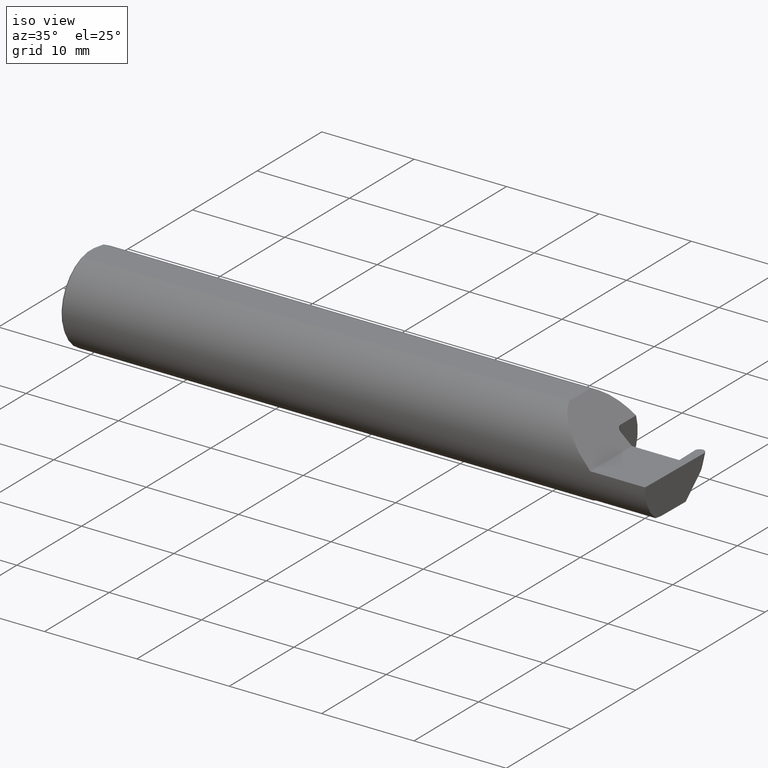
[diagram: clean part render]
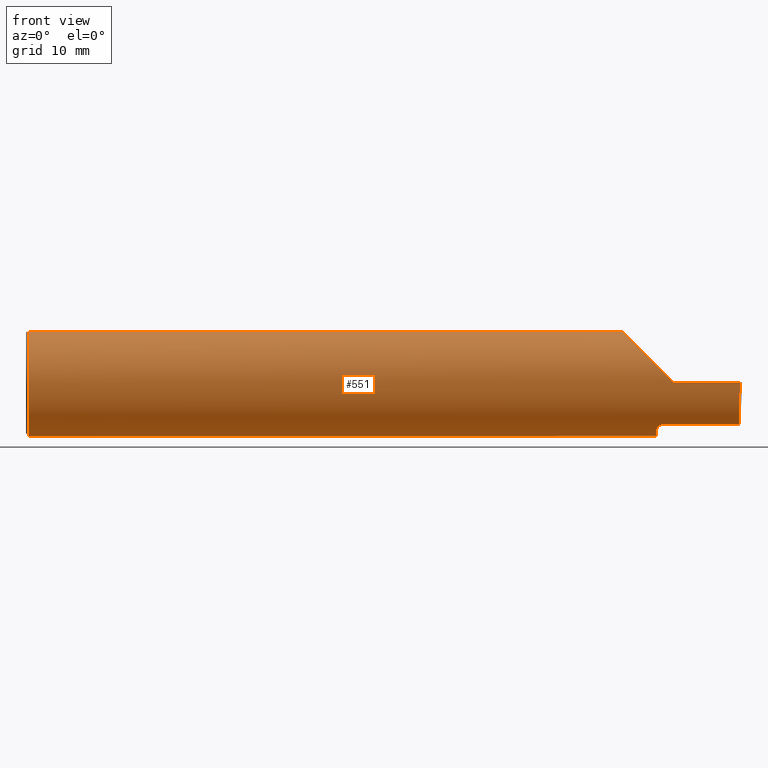
[diagram: tour spotlight — one face highlighted and labeled with its STEP entity id]
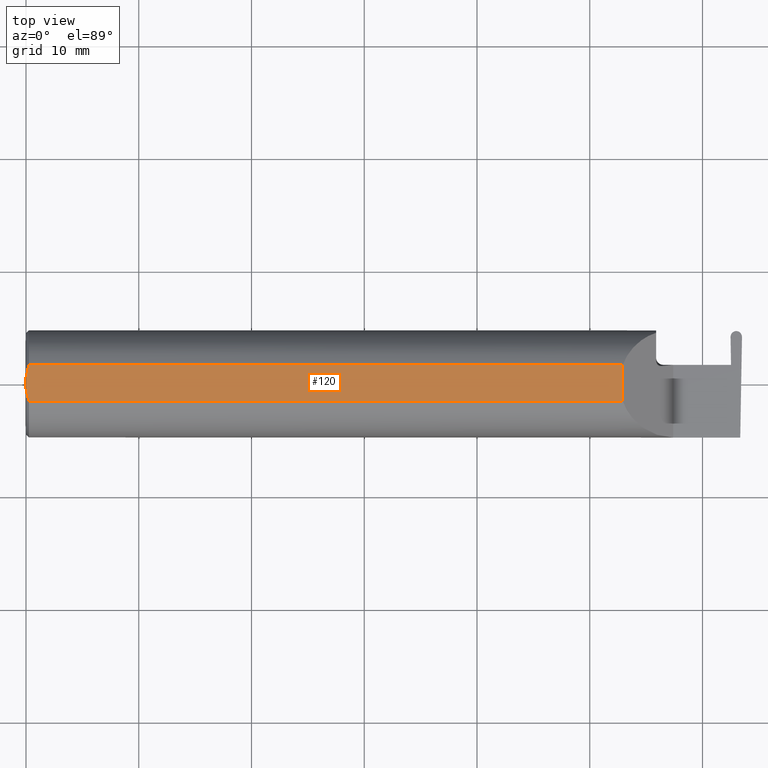
[diagram: tour spotlight — one face highlighted and labeled with its STEP entity id]
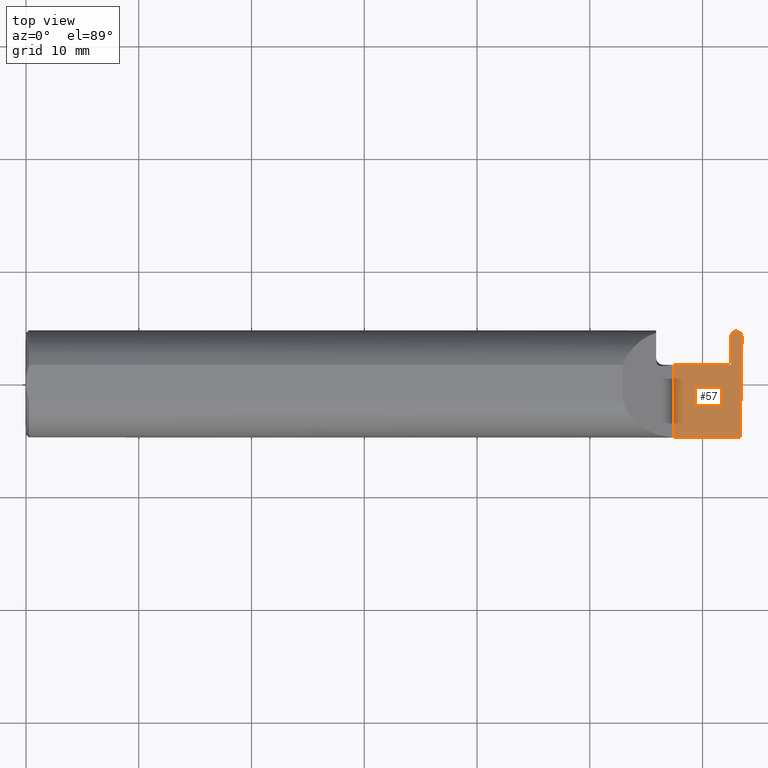
[diagram: tour spotlight — one face highlighted and labeled with its STEP entity id]
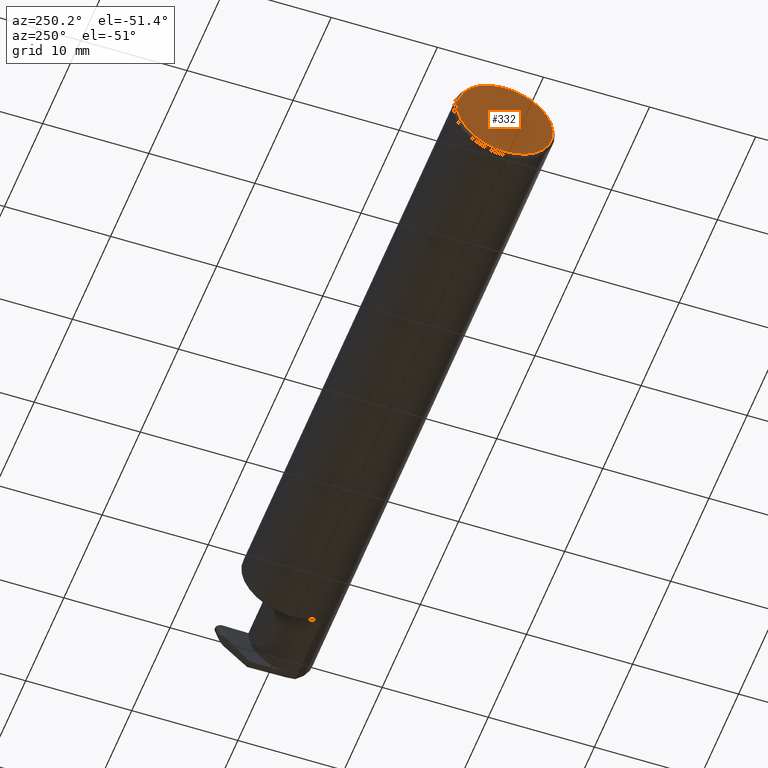
[diagram: tour spotlight — one face highlighted and labeled with its STEP entity id]
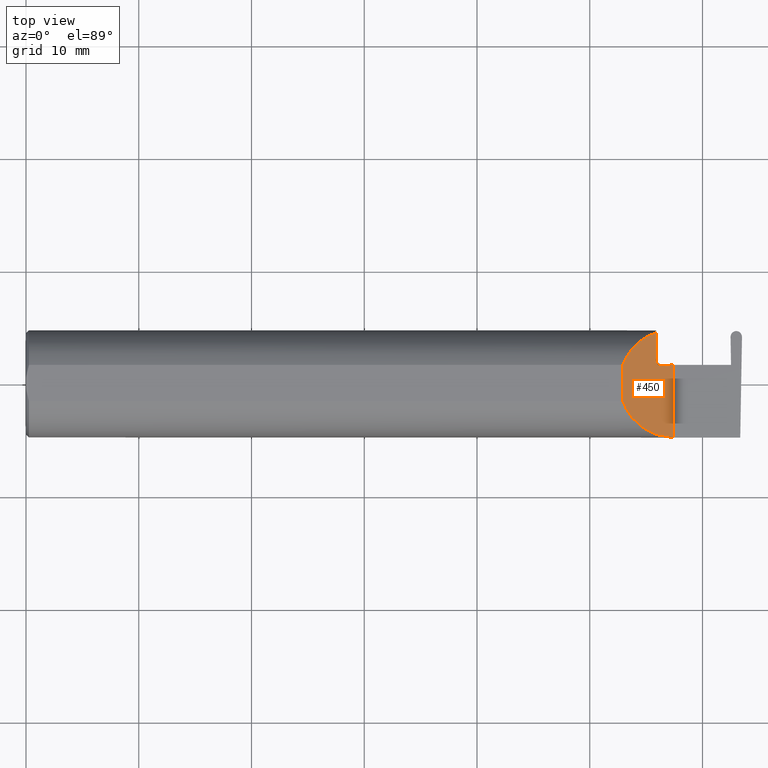
[diagram: tour spotlight — one face highlighted and labeled with its STEP entity id]
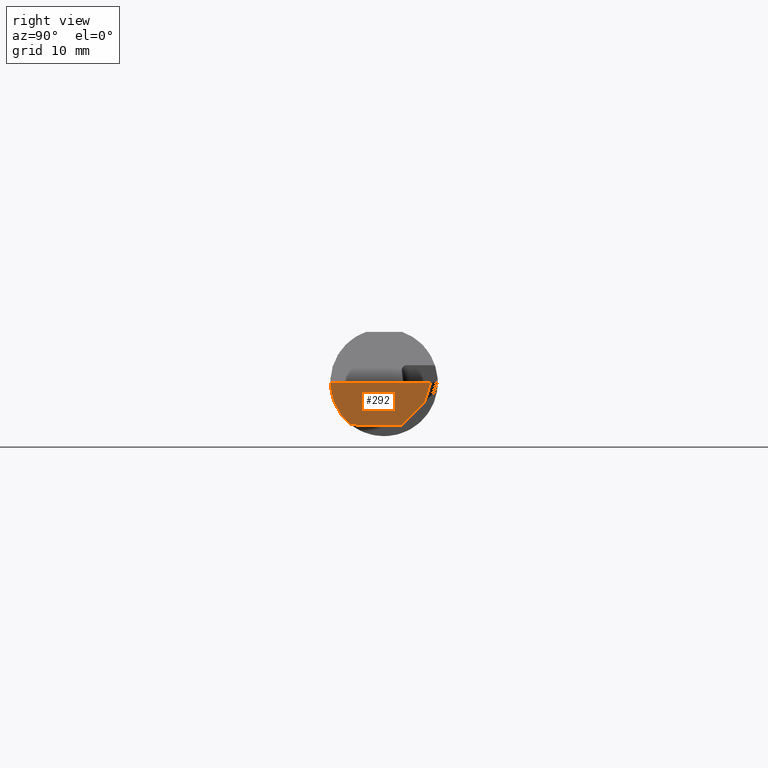
[diagram: tour spotlight — one face highlighted and labeled with its STEP entity id]
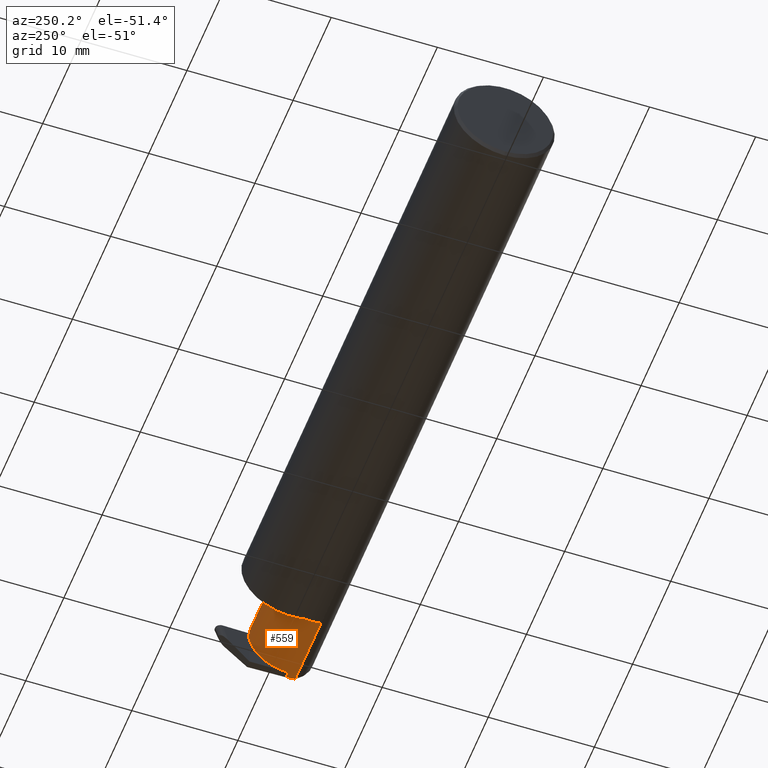
[diagram: tour spotlight — one face highlighted and labeled with its STEP entity id]
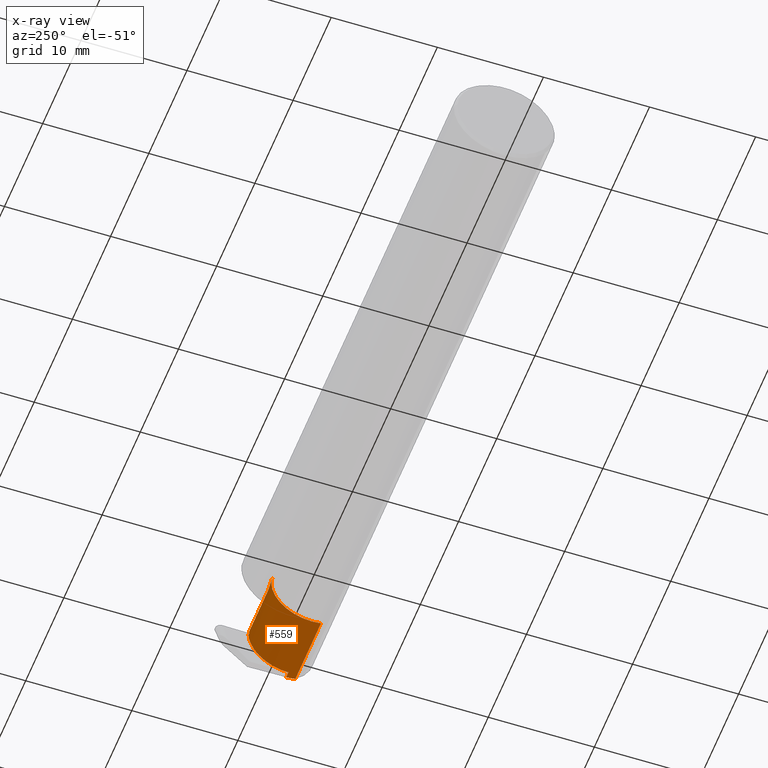
[diagram: x-ray of the same camera — body ghosted, this tour face saturated]
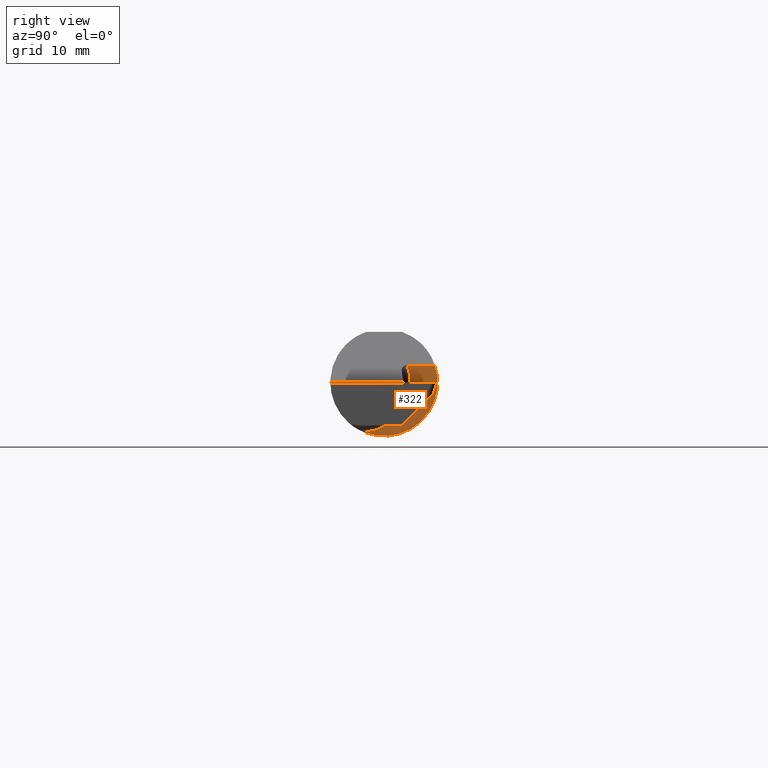
[diagram: tour spotlight — one face highlighted and labeled with its STEP entity id]
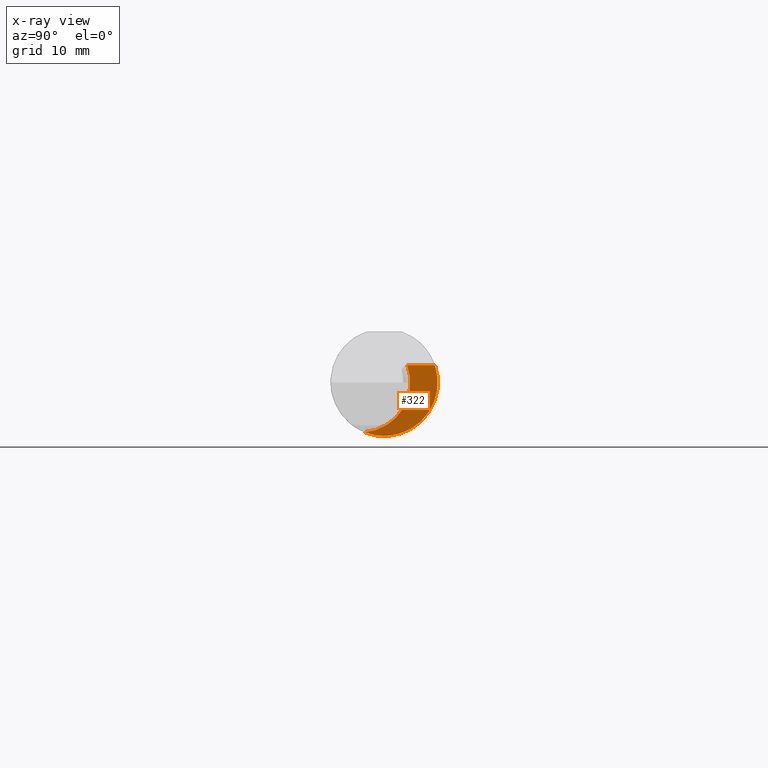
[diagram: x-ray of the same camera — body ghosted, this tour face saturated]
A machine part: a face-by-face anatomy tour. The part has 19 B-rep faces; the first image is the clean iso view, then the 8 largest visible faces are spotlighted one at a time (largest first), each with its STEP entity span.

Face 1 — front view, entity #551. In plain terms, the highlighted cylindrical surface (partial cylindrical patch) has radius 4.7587 mm, axis along (-1, -0, -0).
Definition (entity closure, byte-faithful):
#17 = CARTESIAN_POINT ( 'NONE',  ( 2.213203859946834662, -0.1120371980050636068, -0.1501764597936560697 ) ) ;
#20 = DIRECTION ( 'NONE',  ( -1.000000000000000000, -0.000000000000000000, -0.000000000000000000 ) ) ;
#24 = CARTESIAN_POINT ( 'NONE',  ( 2.201843912362377864, -0.08846956905169063579, -0.1652353808078973474 ) ) ;
#26 = CARTESIAN_POINT ( 'NONE',  ( 0.009999999999999346217, 0.000000000000000000, 0.000000000000000000 ) ) ;
#33 = ORIENTED_EDGE ( 'NONE', *, *, #471, .F. ) ;
#41 = VERTEX_POINT ( 'NONE', #642 ) ;
#42 = ORIENTED_EDGE ( 'NONE', *, *, #225, .F. ) ;
#44 = CARTESIAN_POINT ( 'NONE',  ( 2.489979300894684666, -0.1172600179964003314, -0.1461167706989305870 ) ) ;
#61 = CARTESIAN_POINT ( 'NONE',  ( 0.000000000000000000, 0.000000000000000000, 0.000000000000000000 ) ) ;
#66 = CARTESIAN_POINT ( 'NONE',  ( 2.200000000000000178, 0.1774824568795464186, 0.05999999999999961614 ) ) ;
#67 = ORIENTED_EDGE ( 'NONE', *, *, #643, .T. ) ;
#69 = B_SPLINE_CURVE_WITH_KNOTS ( 'NONE', 3,
 ( #395, #500, #666, #548, #17, #117, #184, #336, #24, #231, #562, #282 ),
 .UNSPECIFIED., .F., .F.,
 ( 4, 2, 2, 2, 2, 4 ),
 ( 1.967976973658592312E-07, 0.0002120314145722267303, 0.0004238660314470875661, 0.0008475352651967975283, 0.001271204498946507328, 0.001694873732696217019 ),
 .UNSPECIFIED. ) ;
#74 = DIRECTION ( 'NONE',  ( 1.000000000000000000, 0.000000000000000000, 0.000000000000000000 ) ) ;
#99 = CARTESIAN_POINT ( 'NONE',  ( 2.111272250967329622, -0.1402645296119147678, 0.1487277490326685825 ) ) ;
#115 = FACE_OUTER_BOUND ( 'NONE', #400, .T. ) ;
#117 = CARTESIAN_POINT ( 'NONE',  ( 2.208439486659307338, -0.1064616213911156184, -0.1542305641651501857 ) ) ;
#125 = CARTESIAN_POINT ( 'NONE',  ( 2.144848040052163896, 0.1588376980957759976, 0.1151519599478345868 ) ) ;
#135 = CARTESIAN_POINT ( 'NONE',  ( 0.009999999999999346217, -0.06325108694718235836, 0.1763499999999999235 ) ) ;
#137 = VERTEX_POINT ( 'NONE', #443 ) ;
#142 = VERTEX_POINT ( 'NONE', #66 ) ;
#144 = EDGE_CURVE ( 'NONE', #633, #159, #612, .T. ) ;
#149 = VECTOR ( 'NONE', #672, 39.37007874015748143 ) ;
#157 = CARTESIAN_POINT ( 'NONE',  ( 2.491840075348994876, -0.1873500000000000165, -0.05781030015605130579 ) ) ;
#159 = VERTEX_POINT ( 'NONE', #176 ) ;
#165 = AXIS2_PLACEMENT_3D ( 'NONE', #469, #318, #248 ) ;
#174 = LINE ( 'NONE', #272, #356 ) ;
#176 = CARTESIAN_POINT ( 'NONE',  ( 2.083649999999998670, -0.06325108694718283020, 0.1763499999999999235 ) ) ;
#183 = CYLINDRICAL_SURFACE ( 'NONE', #258, 0.1873499999999999888 ) ;
#184 = CARTESIAN_POINT ( 'NONE',  ( 2.206304331342288094, -0.1022198306720688704, -0.1570962426853819982 ) ) ;
#185 = VERTEX_POINT ( 'NONE', #381 ) ;
#187 = CARTESIAN_POINT ( 'NONE',  ( 2.103305020982357387, 0.1180511404724818164, 0.1566949790176410395 ) ) ;
#191 = CARTESIAN_POINT ( 'NONE',  ( 2.200000000000000178, 0.1774824568795464186, 0.05999999999999961614 ) ) ;
#196 = CARTESIAN_POINT ( 'NONE',  ( 2.342483000000000093, -0.1172600179964003314, -0.1461167706989305870 ) ) ;
#208 = EDGE_CURVE ( 'NONE', #386, #142, #508, .T. ) ;
#214 =( BOUNDED_CURVE ( )  B_SPLINE_CURVE ( 3, ( #513, #703, #99, #417 ),
 .UNSPECIFIED., .F., .T. ) 
 B_SPLINE_CURVE_WITH_KNOTS ( ( 4, 4 ),
 ( 4.712388980384688786, 5.938809479923471635 ),
 .UNSPECIFIED. ) 
 CURVE ( )  GEOMETRIC_REPRESENTATION_ITEM ( )  RATIONAL_B_SPLINE_CURVE ( ( 1.000000000000000000, 0.8785364999009659392, 0.8785364999009659392, 1.000000000000000000 ) ) 
 REPRESENTATION_ITEM ( '' )  );
#224 = CIRCLE ( 'NONE', #618, 0.1873499999999999888 ) ;
#225 = EDGE_CURVE ( 'NONE', #137, #185, #69, .T. ) ;
#229 = CARTESIAN_POINT ( 'NONE',  ( 2.493859163031828086, -0.1873499999999999888, 0.000000000000000000 ) ) ;
#231 = CARTESIAN_POINT ( 'NONE',  ( 2.200358271039143165, -0.07873626113568055196, -0.1700887912276896341 ) ) ;
#238 = LINE ( 'NONE', #196, #291 ) ;
#243 = CARTESIAN_POINT ( 'NONE',  ( 0.000000000000000000, -0.06325108694718235836, 0.1763499999999999235 ) ) ;
#248 = DIRECTION ( 'NONE',  ( 0.000000000000000000, 0.000000000000000000, -1.000000000000000000 ) ) ;
#249 = ORIENTED_EDGE ( 'NONE', *, *, #144, .F. ) ;
#258 = AXIS2_PLACEMENT_3D ( 'NONE', #61, #597, #427 ) ;
#265 = CARTESIAN_POINT ( 'NONE',  ( 2.490456025610515045, -0.1623470442677539538, -0.1099340280425341043 ) ) ;
#272 = CARTESIAN_POINT ( 'NONE',  ( 0.000000000000000000, 0.06325108694718235836, 0.1763499999999999235 ) ) ;
#276 = ORIENTED_EDGE ( 'NONE', *, *, #593, .T. ) ;
#282 = CARTESIAN_POINT ( 'NONE',  ( 2.200000000000000178, -0.06851976604679038685, -0.1743704796142199753 ) ) ;
#291 = VECTOR ( 'NONE', #515, 39.37007874015748143 ) ;
#312 = VECTOR ( 'NONE', #20, 39.37007874015748143 ) ;
#318 = DIRECTION ( 'NONE',  ( 1.000000000000000000, 0.000000000000000000, 0.000000000000000000 ) ) ;
#331 = ORIENTED_EDGE ( 'NONE', *, *, #428, .T. ) ;
#336 = CARTESIAN_POINT ( 'NONE',  ( 2.202960551809340028, -0.09317341542745721794, -0.1626248379125198318 ) ) ;
#343 = EDGE_CURVE ( 'NONE', #185, #142, #510, .T. ) ;
#344 = VERTEX_POINT ( 'NONE', #451 ) ;
#349 = CARTESIAN_POINT ( 'NONE',  ( 2.083649999999998670, 0.06325108694718283020, 0.1763499999999999235 ) ) ;
#354 = EDGE_CURVE ( 'NONE', #501, #159, #214, .T. ) ;
#356 = VECTOR ( 'NONE', #487, 39.37007874015748143 ) ;
#357 = CIRCLE ( 'NONE', #498, 0.1873499999999999888 ) ;
#365 = ORIENTED_EDGE ( 'NONE', *, *, #208, .T. ) ;
#377 = CARTESIAN_POINT ( 'NONE',  ( 2.260000000000000231, -0.1873499999999999888, 2.939152317953647352E-17 ) ) ;
#381 = CARTESIAN_POINT ( 'NONE',  ( 2.200000000000000178, -0.06851976604679038685, -0.1743704796142199753 ) ) ;
#386 = VERTEX_POINT ( 'NONE', #641 ) ;
#388 = CARTESIAN_POINT ( 'NONE',  ( 0.009999999999999346217, 0.000000000000000000, 0.000000000000000000 ) ) ;
#395 = CARTESIAN_POINT ( 'NONE',  ( 2.225000000000000089, -0.1172600179964003314, -0.1461167706989306148 ) ) ;
#400 = EDGE_LOOP ( 'NONE', ( #610, #331, #276, #549, #249, #492, #67, #33, #365, #640, #42 ) ) ;
#417 = CARTESIAN_POINT ( 'NONE',  ( 2.083649999999998670, -0.06325108694718283020, 0.1763499999999999235 ) ) ;
#427 = DIRECTION ( 'NONE',  ( 0.000000000000000000, 0.000000000000000000, 1.000000000000000000 ) ) ;
#428 = EDGE_CURVE ( 'NONE', #41, #563, #667, .T. ) ;
#443 = CARTESIAN_POINT ( 'NONE',  ( 2.225000000000000089, -0.1172600179964003314, -0.1461167706989306148 ) ) ;
#451 = CARTESIAN_POINT ( 'NONE',  ( 0.009999999999999346217, 0.000000000000000000, -0.1873499999999999888 ) ) ;
#453 = LINE ( 'NONE', #623, #312 ) ;
#469 = CARTESIAN_POINT ( 'NONE',  ( 2.200000000000000178, 0.000000000000000000, 0.000000000000000000 ) ) ;
#471 = EDGE_CURVE ( 'NONE', #386, #476, #174, .T. ) ;
#476 = VERTEX_POINT ( 'NONE', #540 ) ;
#487 = DIRECTION ( 'NONE',  ( -1.000000000000000000, -0.000000000000000000, -0.000000000000000000 ) ) ;
#492 = ORIENTED_EDGE ( 'NONE', *, *, #582, .T. ) ;
#498 = AXIS2_PLACEMENT_3D ( 'NONE', #388, #74, #615 ) ;
#500 = CARTESIAN_POINT ( 'NONE',  ( 2.222174967710399685, -0.1172600179964003592, -0.1461167706989306148 ) ) ;
#501 = VERTEX_POINT ( 'NONE', #377 ) ;
#508 =( BOUNDED_CURVE ( )  B_SPLINE_CURVE ( 3, ( #349, #187, #125, #191 ),
 .UNSPECIFIED., .F., .T. ) 
 B_SPLINE_CURVE_WITH_KNOTS ( ( 4, 4 ),
 ( 0.3443758272561143752, 1.244796402594305018 ),
 .UNSPECIFIED. ) 
 CURVE ( )  GEOMETRIC_REPRESENTATION_ITEM ( )  RATIONAL_B_SPLINE_CURVE ( ( 1.000000000000000000, 0.9335704097038357574, 0.9335704097038357574, 1.000000000000000000 ) ) 
 REPRESENTATION_ITEM ( '' )  );
#510 = CIRCLE ( 'NONE', #165, 0.1873499999999999888 ) ;
#512 = DIRECTION ( 'NONE',  ( 1.000000000000000000, 0.000000000000000000, 0.000000000000000000 ) ) ;
#513 = CARTESIAN_POINT ( 'NONE',  ( 2.260000000000000231, -0.1873499999999999888, 2.939152317953647352E-17 ) ) ;
#515 = DIRECTION ( 'NONE',  ( -1.000000000000000000, -0.000000000000000000, -0.000000000000000000 ) ) ;
#540 = CARTESIAN_POINT ( 'NONE',  ( 0.009999999999999346217, 0.06325108694718235836, 0.1763499999999999235 ) ) ;
#548 = CARTESIAN_POINT ( 'NONE',  ( 2.215028532764137914, -0.1137241120808232947, -0.1488947809299405733 ) ) ;
#549 = ORIENTED_EDGE ( 'NONE', *, *, #354, .T. ) ;
#551 = ADVANCED_FACE ( 'NONE', ( #115 ), #183, .T. ) ;
#562 = CARTESIAN_POINT ( 'NONE',  ( 2.199999999999999289, -0.07368234487347166684, -0.1723418180300748948 ) ) ;
#563 = VERTEX_POINT ( 'NONE', #653 ) ;
#582 = EDGE_CURVE ( 'NONE', #633, #344, #224, .T. ) ;
#593 = EDGE_CURVE ( 'NONE', #563, #501, #453, .T. ) ;
#597 = DIRECTION ( 'NONE',  ( -1.000000000000000000, -0.000000000000000000, -0.000000000000000000 ) ) ;
#610 = ORIENTED_EDGE ( 'NONE', *, *, #616, .F. ) ;
#611 = DIRECTION ( 'NONE',  ( 0.000000000000000000, 0.000000000000000000, -1.000000000000000000 ) ) ;
#612 = LINE ( 'NONE', #243, #149 ) ;
#615 = DIRECTION ( 'NONE',  ( 0.000000000000000000, 0.000000000000000000, -1.000000000000000000 ) ) ;
#616 = EDGE_CURVE ( 'NONE', #41, #137, #238, .T. ) ;
#618 = AXIS2_PLACEMENT_3D ( 'NONE', #26, #512, #611 ) ;
#623 = CARTESIAN_POINT ( 'NONE',  ( 3.749399456654646757E-32, -0.1873499999999999610, 3.061616997868383634E-16 ) ) ;
#633 = VERTEX_POINT ( 'NONE', #135 ) ;
#640 = ORIENTED_EDGE ( 'NONE', *, *, #343, .F. ) ;
#641 = CARTESIAN_POINT ( 'NONE',  ( 2.083649999999998670, 0.06325108694718283020, 0.1763499999999999235 ) ) ;
#642 = CARTESIAN_POINT ( 'NONE',  ( 2.489979300894684666, -0.1172600179964003314, -0.1461167706989305870 ) ) ;
#643 = EDGE_CURVE ( 'NONE', #344, #476, #357, .T. ) ;
#653 = CARTESIAN_POINT ( 'NONE',  ( 2.493859163031828086, -0.1873499999999999888, 0.000000000000000000 ) ) ;
#666 = CARTESIAN_POINT ( 'NONE',  ( 2.219511795768555285, -0.1163687266324231750, -0.1468371510166791294 ) ) ;
#667 =( BOUNDED_CURVE ( )  B_SPLINE_CURVE ( 3, ( #44, #265, #157, #229 ),
 .UNSPECIFIED., .F., .T. ) 
 B_SPLINE_CURVE_WITH_KNOTS ( ( 4, 4 ),
 ( 0.2128041086811007510, 1.107331509589550622 ),
 .UNSPECIFIED. ) 
 CURVE ( )  GEOMETRIC_REPRESENTATION_ITEM ( )  RATIONAL_B_SPLINE_CURVE ( ( 1.000000000000000000, 0.9344226172588798729, 0.9344226172588798729, 1.000000000000000000 ) ) 
 REPRESENTATION_ITEM ( '' )  );
#672 = DIRECTION ( 'NONE',  ( 1.000000000000000000, 0.000000000000000000, 0.000000000000000000 ) ) ;
#703 = CARTESIAN_POINT ( 'NONE',  ( 2.178182770154592163, -0.1873500000000000443, 0.08181722984540684696 ) ) ;

Face 2 — top view, entity #120. In plain terms, the highlighted planar face has unit normal (0, 0, 1).
Definition (entity closure, byte-faithful):
#18 = EDGE_CURVE ( 'NONE', #362, #341, #60, .T. ) ;
#21 = CARTESIAN_POINT ( 'NONE',  ( 0.005155213631852355663, 0.04890080824240217866, 0.1763499999999999235 ) ) ;
#53 = B_SPLINE_CURVE_WITH_KNOTS ( 'NONE', 3,
 ( #384, #374, #59, #280 ),
 .UNSPECIFIED., .F., .F.,
 ( 4, 4 ),
 ( 0.009771445421851449736, 0.01092787937989102981 ),
 .UNSPECIFIED. ) ;
#54 = FACE_OUTER_BOUND ( 'NONE', #410, .T. ) ;
#56 = DIRECTION ( 'NONE',  ( 0.000000000000000000, 0.000000000000000000, 1.000000000000000000 ) ) ;
#59 = CARTESIAN_POINT ( 'NONE',  ( 0.001595548104417217512, -0.03385300050298979679, 0.1763499999999999235 ) ) ;
#60 = LINE ( 'NONE', #467, #697 ) ;
#71 = CARTESIAN_POINT ( 'NONE',  ( 0.009999999999999346217, 0.06325108694718235836, 0.1763499999999999235 ) ) ;
#120 = ADVANCED_FACE ( 'NONE', ( #54 ), #329, .T. ) ;
#126 = ORIENTED_EDGE ( 'NONE', *, *, #471, .T. ) ;
#132 = DIRECTION ( 'NONE',  ( 0.000000000000000000, 1.000000000000000000, 0.000000000000000000 ) ) ;
#135 = CARTESIAN_POINT ( 'NONE',  ( 0.009999999999999346217, -0.06325108694718235836, 0.1763499999999999235 ) ) ;
#144 = EDGE_CURVE ( 'NONE', #633, #159, #612, .T. ) ;
#149 = VECTOR ( 'NONE', #672, 39.37007874015748143 ) ;
#155 = EDGE_CURVE ( 'NONE', #341, #476, #171, .T. ) ;
#159 = VERTEX_POINT ( 'NONE', #176 ) ;
#171 = B_SPLINE_CURVE_WITH_KNOTS ( 'NONE', 3,
 ( #389, #228, #21, #71 ),
 .UNSPECIFIED., .F., .F.,
 ( 4, 4 ),
 ( 0.01188664626022267051, 0.01304646959483758001 ),
 .UNSPECIFIED. ) ;
#174 = LINE ( 'NONE', #272, #356 ) ;
#176 = CARTESIAN_POINT ( 'NONE',  ( 2.083649999999998670, -0.06325108694718283020, 0.1763499999999999235 ) ) ;
#177 = ORIENTED_EDGE ( 'NONE', *, *, #155, .F. ) ;
#178 = AXIS2_PLACEMENT_3D ( 'NONE', #541, #56, #275 ) ;
#181 = EDGE_CURVE ( 'NONE', #159, #386, #440, .T. ) ;
#228 = CARTESIAN_POINT ( 'NONE',  ( 0.001616639753276218755, 0.03405189565400963680, 0.1763499999999999235 ) ) ;
#240 = ORIENTED_EDGE ( 'NONE', *, *, #144, .T. ) ;
#243 = CARTESIAN_POINT ( 'NONE',  ( 0.000000000000000000, -0.06325108694718235836, 0.1763499999999999235 ) ) ;
#259 = ORIENTED_EDGE ( 'NONE', *, *, #181, .T. ) ;
#272 = CARTESIAN_POINT ( 'NONE',  ( 0.000000000000000000, 0.06325108694718235836, 0.1763499999999999235 ) ) ;
#275 = DIRECTION ( 'NONE',  ( 1.000000000000000000, 0.000000000000000000, -0.000000000000000000 ) ) ;
#280 = CARTESIAN_POINT ( 'NONE',  ( 0.000000000000000000, -0.01880691362239451242, 0.1763499999999999235 ) ) ;
#321 = CARTESIAN_POINT ( 'NONE',  ( 0.000000000000000000, 0.01880691362239451242, 0.1763499999999999235 ) ) ;
#329 = PLANE ( 'NONE',  #178 ) ;
#337 = ORIENTED_EDGE ( 'NONE', *, *, #528, .F. ) ;
#341 = VERTEX_POINT ( 'NONE', #321 ) ;
#356 = VECTOR ( 'NONE', #487, 39.37007874015748143 ) ;
#362 = VERTEX_POINT ( 'NONE', #571 ) ;
#373 = DIRECTION ( 'NONE',  ( -0.000000000000000000, 1.000000000000000000, -0.000000000000000000 ) ) ;
#374 = CARTESIAN_POINT ( 'NONE',  ( 0.005151108632379595466, -0.04888864921576189376, 0.1763499999999999235 ) ) ;
#384 = CARTESIAN_POINT ( 'NONE',  ( 0.009999999999999346217, -0.06325108694718235836, 0.1763499999999999235 ) ) ;
#386 = VERTEX_POINT ( 'NONE', #641 ) ;
#389 = CARTESIAN_POINT ( 'NONE',  ( 0.000000000000000000, 0.01880691362239451242, 0.1763499999999999235 ) ) ;
#410 = EDGE_LOOP ( 'NONE', ( #240, #259, #126, #177, #646, #337 ) ) ;
#440 = LINE ( 'NONE', #604, #448 ) ;
#448 = VECTOR ( 'NONE', #132, 39.37007874015748143 ) ;
#467 = CARTESIAN_POINT ( 'NONE',  ( 0.000000000000000000, 0.1873499999999998500, 0.1763499999999999235 ) ) ;
#471 = EDGE_CURVE ( 'NONE', #386, #476, #174, .T. ) ;
#476 = VERTEX_POINT ( 'NONE', #540 ) ;
#487 = DIRECTION ( 'NONE',  ( -1.000000000000000000, -0.000000000000000000, -0.000000000000000000 ) ) ;
#528 = EDGE_CURVE ( 'NONE', #633, #362, #53, .T. ) ;
#540 = CARTESIAN_POINT ( 'NONE',  ( 0.009999999999999346217, 0.06325108694718235836, 0.1763499999999999235 ) ) ;
#541 = CARTESIAN_POINT ( 'NONE',  ( 2.876828993045917215, 0.1873499999999998500, 0.1763499999999999235 ) ) ;
#571 = CARTESIAN_POINT ( 'NONE',  ( 0.000000000000000000, -0.01880691362239451242, 0.1763499999999999235 ) ) ;
#604 = CARTESIAN_POINT ( 'NONE',  ( 2.083649999999998670, -0.2500000000000000555, 0.1763499999999999235 ) ) ;
#612 = LINE ( 'NONE', #243, #149 ) ;
#633 = VERTEX_POINT ( 'NONE', #135 ) ;
#641 = CARTESIAN_POINT ( 'NONE',  ( 2.083649999999998670, 0.06325108694718283020, 0.1763499999999999235 ) ) ;
#646 = ORIENTED_EDGE ( 'NONE', *, *, #18, .F. ) ;
#672 = DIRECTION ( 'NONE',  ( 1.000000000000000000, 0.000000000000000000, 0.000000000000000000 ) ) ;
#697 = VECTOR ( 'NONE', #373, 39.37007874015748143 ) ;

Face 3 — top view, entity #57. In plain terms, the highlighted planar face has unit normal (-0, 0, -1).
Definition (entity closure, byte-faithful):
#9 = CARTESIAN_POINT ( 'NONE',  ( 2.459969048686054816, 0.1642836551803449618, 0.000000000000000000 ) ) ;
#20 = DIRECTION ( 'NONE',  ( -1.000000000000000000, -0.000000000000000000, -0.000000000000000000 ) ) ;
#25 = ORIENTED_EDGE ( 'NONE', *, *, #408, .F. ) ;
#35 = CARTESIAN_POINT ( 'NONE',  ( 2.461673250476406061, 0.06664999999999984825, 0.000000000000000000 ) ) ;
#49 = CARTESIAN_POINT ( 'NONE',  ( 2.499983250056980300, 0.1634987106945233470, 0.000000000000000000 ) ) ;
#50 = CARTESIAN_POINT ( 'NONE',  ( 2.500000000000000000, -0.2500000000000000555, 0.000000000000000000 ) ) ;
#57 = ADVANCED_FACE ( 'NONE', ( #601 ), #162, .F. ) ;
#79 = CARTESIAN_POINT ( 'NONE',  ( 2.479744952083223097, 0.1846500000000000363, 0.000000000000000000 ) ) ;
#114 = AXIS2_PLACEMENT_3D ( 'NONE', #50, #367, #704 ) ;
#122 = CARTESIAN_POINT ( 'NONE',  ( 2.461673250476406061, 0.06664999999999984825, 0.000000000000000000 ) ) ;
#140 = CARTESIAN_POINT ( 'NONE',  ( 2.491999529393823742, 0.1846499999999998975, -1.473175192682373633E-18 ) ) ;
#162 = PLANE ( 'NONE',  #114 ) ;
#173 = ORIENTED_EDGE ( 'NONE', *, *, #505, .F. ) ;
#190 = VECTOR ( 'NONE', #555, 39.37007874015748854 ) ;
#192 = ORIENTED_EDGE ( 'NONE', *, *, #314, .F. ) ;
#194 = LINE ( 'NONE', #639, #522 ) ;
#197 = CARTESIAN_POINT ( 'NONE',  ( 2.260000000000000231, -0.2500000000000000555, 2.939152317953647352E-17 ) ) ;
#199 = EDGE_CURVE ( 'NONE', #430, #668, #346, .T. ) ;
#201 = VECTOR ( 'NONE', #330, 39.37007874015748143 ) ;
#203 = ORIENTED_EDGE ( 'NONE', *, *, #199, .F. ) ;
#246 = VECTOR ( 'NONE', #684, 39.37007874015748143 ) ;
#262 = EDGE_CURVE ( 'NONE', #705, #430, #609, .T. ) ;
#269 = CARTESIAN_POINT ( 'NONE',  ( 2.500199259956601416, 0.1758739095557345922, -2.477352571440047159E-18 ) ) ;
#270 = EDGE_CURVE ( 'NONE', #422, #668, #584, .T. ) ;
#285 =( BOUNDED_CURVE ( )  B_SPLINE_CURVE ( 3, ( #49, #269, #140, #507 ),
 .UNSPECIFIED., .F., .T. ) 
 B_SPLINE_CURVE_WITH_KNOTS ( ( 4, 4 ),
 ( 1.683182027770901090, 3.259781963246014325 ),
 .UNSPECIFIED. ) 
 CURVE ( )  GEOMETRIC_REPRESENTATION_ITEM ( )  RATIONAL_B_SPLINE_CURVE ( ( 1.000000000000000000, 0.8033679476376962558, 0.8033679476376962558, 1.000000000000000000 ) ) 
 REPRESENTATION_ITEM ( '' )  );
#286 = CARTESIAN_POINT ( 'NONE',  ( -0.001039370078740541395, 0.1846500000000000363, 0.000000000000000000 ) ) ;
#290 = CARTESIAN_POINT ( 'NONE',  ( 2.459982749943019797, 0.1634987106945234303, 0.000000000000000000 ) ) ;
#297 = CARTESIAN_POINT ( 'NONE',  ( 2.499983250056980300, 0.1634987106945233470, 0.000000000000000000 ) ) ;
#312 = VECTOR ( 'NONE', #20, 39.37007874015748143 ) ;
#314 = EDGE_CURVE ( 'NONE', #619, #705, #194, .T. ) ;
#320 = CARTESIAN_POINT ( 'NONE',  ( 2.454613552814877142, 0.06664999999999994540, 0.000000000000000000 ) ) ;
#327 = VERTEX_POINT ( 'NONE', #533 ) ;
#330 = DIRECTION ( 'NONE',  ( 1.000000000000000000, -0.000000000000000000, -0.000000000000000000 ) ) ;
#342 = LINE ( 'NONE', #561, #438 ) ;
#346 = LINE ( 'NONE', #9, #190 ) ;
#348 = DIRECTION ( 'NONE',  ( -0.01745240643727691970, -0.9998476951563912696, 0.000000000000000000 ) ) ;
#367 = DIRECTION ( 'NONE',  ( -1.224646799147353947E-16, 0.000000000000000000, -1.000000000000000000 ) ) ;
#371 = ORIENTED_EDGE ( 'NONE', *, *, #387, .T. ) ;
#377 = CARTESIAN_POINT ( 'NONE',  ( 2.260000000000000231, -0.1873499999999999888, 2.939152317953647352E-17 ) ) ;
#387 = EDGE_CURVE ( 'NONE', #678, #327, #285, .T. ) ;
#392 = CARTESIAN_POINT ( 'NONE',  ( 2.467966470606175911, 0.1846499999999999808, 1.473175192682370359E-18 ) ) ;
#403 = ORIENTED_EDGE ( 'NONE', *, *, #270, .T. ) ;
#408 = EDGE_CURVE ( 'NONE', #501, #619, #529, .T. ) ;
#422 = VERTEX_POINT ( 'NONE', #79 ) ;
#430 = VERTEX_POINT ( 'NONE', #35 ) ;
#438 = VECTOR ( 'NONE', #348, 39.37007874015748143 ) ;
#445 = CARTESIAN_POINT ( 'NONE',  ( 2.260000000000000231, 0.06664999999999984825, 2.939152317953647352E-17 ) ) ;
#453 = LINE ( 'NONE', #623, #312 ) ;
#501 = VERTEX_POINT ( 'NONE', #377 ) ;
#505 = EDGE_CURVE ( 'NONE', #422, #327, #647, .T. ) ;
#507 = CARTESIAN_POINT ( 'NONE',  ( 2.480221047916776556, 0.1846500000000000363, 0.000000000000000000 ) ) ;
#522 = VECTOR ( 'NONE', #680, 39.37007874015748143 ) ;
#526 = ORIENTED_EDGE ( 'NONE', *, *, #593, .F. ) ;
#529 = LINE ( 'NONE', #197, #246 ) ;
#533 = CARTESIAN_POINT ( 'NONE',  ( 2.480221047916776556, 0.1846500000000000363, 0.000000000000000000 ) ) ;
#534 = VECTOR ( 'NONE', #558, 39.37007874015748143 ) ;
#552 = CARTESIAN_POINT ( 'NONE',  ( 2.479744952083223097, 0.1846500000000000363, 0.000000000000000000 ) ) ;
#555 = DIRECTION ( 'NONE',  ( -0.01745240643727647561, 0.9998476951563912696, -0.000000000000000000 ) ) ;
#558 = DIRECTION ( 'NONE',  ( 1.000000000000000000, -1.209262122756677455E-14, -0.000000000000000000 ) ) ;
#560 = ORIENTED_EDGE ( 'NONE', *, *, #654, .F. ) ;
#561 = CARTESIAN_POINT ( 'NONE',  ( 2.499996951313945281, 0.1642836551803450174, 0.000000000000000000 ) ) ;
#563 = VERTEX_POINT ( 'NONE', #653 ) ;
#584 =( BOUNDED_CURVE ( )  B_SPLINE_CURVE ( 3, ( #552, #392, #617, #661 ),
 .UNSPECIFIED., .F., .T. ) 
 B_SPLINE_CURVE_WITH_KNOTS ( ( 4, 4 ),
 ( 6.164995997523364579, 7.741595932998476037 ),
 .UNSPECIFIED. ) 
 CURVE ( )  GEOMETRIC_REPRESENTATION_ITEM ( )  RATIONAL_B_SPLINE_CURVE ( ( 1.000000000000000000, 0.8033679476376966999, 0.8033679476376966999, 1.000000000000000000 ) ) 
 REPRESENTATION_ITEM ( '' )  );
#593 = EDGE_CURVE ( 'NONE', #563, #501, #453, .T. ) ;
#601 = FACE_OUTER_BOUND ( 'NONE', #693, .T. ) ;
#609 = LINE ( 'NONE', #122, #534 ) ;
#617 = CARTESIAN_POINT ( 'NONE',  ( 2.459766740043397792, 0.1758739095557346477, 2.477352571440044463E-18 ) ) ;
#619 = VERTEX_POINT ( 'NONE', #445 ) ;
#623 = CARTESIAN_POINT ( 'NONE',  ( 3.749399456654646757E-32, -0.1873499999999999610, 3.061616997868383634E-16 ) ) ;
#625 = ORIENTED_EDGE ( 'NONE', *, *, #262, .F. ) ;
#639 = CARTESIAN_POINT ( 'NONE',  ( 2.200000000000000178, 0.06665000000000002867, 3.673940397442061347E-17 ) ) ;
#647 = LINE ( 'NONE', #286, #201 ) ;
#653 = CARTESIAN_POINT ( 'NONE',  ( 2.493859163031828086, -0.1873499999999999888, 0.000000000000000000 ) ) ;
#654 = EDGE_CURVE ( 'NONE', #678, #563, #342, .T. ) ;
#661 = CARTESIAN_POINT ( 'NONE',  ( 2.459982749943019797, 0.1634987106945234303, 0.000000000000000000 ) ) ;
#668 = VERTEX_POINT ( 'NONE', #290 ) ;
#678 = VERTEX_POINT ( 'NONE', #297 ) ;
#680 = DIRECTION ( 'NONE',  ( 1.000000000000000000, 0.000000000000000000, 0.000000000000000000 ) ) ;
#684 = DIRECTION ( 'NONE',  ( -0.000000000000000000, 1.000000000000000000, -0.000000000000000000 ) ) ;
#693 = EDGE_LOOP ( 'NONE', ( #173, #403, #203, #625, #192, #25, #526, #560, #371 ) ) ;
#704 = DIRECTION ( 'NONE',  ( -1.000000000000000000, 0.000000000000000000, 1.224646799147353947E-16 ) ) ;
#705 = VERTEX_POINT ( 'NONE', #320 ) ;

Face 4 — auxiliary view, entity #332. In plain terms, the highlighted planar face has unit normal (1, 0, 0).
Definition (entity closure, byte-faithful):
#18 = EDGE_CURVE ( 'NONE', #362, #341, #60, .T. ) ;
#27 = DIRECTION ( 'NONE',  ( 0.000000000000000000, 0.000000000000000000, -1.000000000000000000 ) ) ;
#40 = CIRCLE ( 'NONE', #637, 0.1773500000000005072 ) ;
#60 = LINE ( 'NONE', #467, #697 ) ;
#87 = CARTESIAN_POINT ( 'NONE',  ( 0.000000000000000000, 0.000000000000000000, -0.1773500000000005072 ) ) ;
#127 = DIRECTION ( 'NONE',  ( -1.000000000000000000, -0.000000000000000000, -0.000000000000000000 ) ) ;
#128 = AXIS2_PLACEMENT_3D ( 'NONE', #456, #127, #401 ) ;
#129 = DIRECTION ( 'NONE',  ( 0.000000000000000000, 0.000000000000000000, -1.000000000000000000 ) ) ;
#134 = ORIENTED_EDGE ( 'NONE', *, *, #570, .T. ) ;
#136 = FACE_OUTER_BOUND ( 'NONE', #465, .T. ) ;
#167 = EDGE_CURVE ( 'NONE', #341, #313, #40, .T. ) ;
#202 = DIRECTION ( 'NONE',  ( 1.000000000000000000, 0.000000000000000000, 0.000000000000000000 ) ) ;
#233 = AXIS2_PLACEMENT_3D ( 'NONE', #307, #202, #27 ) ;
#279 = DIRECTION ( 'NONE',  ( -1.000000000000000000, -0.000000000000000000, -0.000000000000000000 ) ) ;
#288 = ORIENTED_EDGE ( 'NONE', *, *, #18, .T. ) ;
#307 = CARTESIAN_POINT ( 'NONE',  ( 0.000000000000000000, 0.000000000000000000, 0.000000000000000000 ) ) ;
#313 = VERTEX_POINT ( 'NONE', #87 ) ;
#321 = CARTESIAN_POINT ( 'NONE',  ( 0.000000000000000000, 0.01880691362239451242, 0.1763499999999999235 ) ) ;
#332 = ADVANCED_FACE ( 'NONE', ( #136 ), #366, .F. ) ;
#341 = VERTEX_POINT ( 'NONE', #321 ) ;
#345 = CIRCLE ( 'NONE', #128, 0.1773500000000005072 ) ;
#362 = VERTEX_POINT ( 'NONE', #571 ) ;
#366 = PLANE ( 'NONE',  #233 ) ;
#373 = DIRECTION ( 'NONE',  ( -0.000000000000000000, 1.000000000000000000, -0.000000000000000000 ) ) ;
#401 = DIRECTION ( 'NONE',  ( 0.000000000000000000, 0.000000000000000000, -1.000000000000000000 ) ) ;
#456 = CARTESIAN_POINT ( 'NONE',  ( 0.000000000000000000, 0.000000000000000000, 0.000000000000000000 ) ) ;
#465 = EDGE_LOOP ( 'NONE', ( #288, #519, #134 ) ) ;
#467 = CARTESIAN_POINT ( 'NONE',  ( 0.000000000000000000, 0.1873499999999998500, 0.1763499999999999235 ) ) ;
#503 = CARTESIAN_POINT ( 'NONE',  ( 0.000000000000000000, 0.000000000000000000, 0.000000000000000000 ) ) ;
#519 = ORIENTED_EDGE ( 'NONE', *, *, #167, .T. ) ;
#570 = EDGE_CURVE ( 'NONE', #313, #362, #345, .T. ) ;
#571 = CARTESIAN_POINT ( 'NONE',  ( 0.000000000000000000, -0.01880691362239451242, 0.1763499999999999235 ) ) ;
#637 = AXIS2_PLACEMENT_3D ( 'NONE', #503, #279, #129 ) ;
#697 = VECTOR ( 'NONE', #373, 39.37007874015748143 ) ;

Face 5 — top view, entity #450. In plain terms, the highlighted planar face has unit normal (-0.7071, 0, -0.7071).
Definition (entity closure, byte-faithful):
#7 = CARTESIAN_POINT ( 'NONE',  ( 2.260000000000000231, -0.2500000000000000555, 2.939152317953647352E-17 ) ) ;
#12 = VERTEX_POINT ( 'NONE', #375 ) ;
#23 = CARTESIAN_POINT ( 'NONE',  ( 2.204146777195072016, 0.06733032564037060019, 0.05585322280492711206 ) ) ;
#29 = ORIENTED_EDGE ( 'NONE', *, *, #664, .F. ) ;
#34 = CARTESIAN_POINT ( 'NONE',  ( 2.219643712645606559, 0.06157137645965359701, 0.04035628735439346360 ) ) ;
#66 = CARTESIAN_POINT ( 'NONE',  ( 2.200000000000000178, 0.1774824568795464186, 0.05999999999999961614 ) ) ;
#80 = VERTEX_POINT ( 'NONE', #585 ) ;
#99 = CARTESIAN_POINT ( 'NONE',  ( 2.111272250967329622, -0.1402645296119147678, 0.1487277490326685825 ) ) ;
#112 = PLANE ( 'NONE',  #657 ) ;
#125 = CARTESIAN_POINT ( 'NONE',  ( 2.144848040052163896, 0.1588376980957759976, 0.1151519599478345868 ) ) ;
#132 = DIRECTION ( 'NONE',  ( 0.000000000000000000, 1.000000000000000000, 0.000000000000000000 ) ) ;
#138 = CARTESIAN_POINT ( 'NONE',  ( 2.200842198961673102, 0.07338839382613029927, 0.05915780103832708053 ) ) ;
#142 = VERTEX_POINT ( 'NONE', #66 ) ;
#150 = ORIENTED_EDGE ( 'NONE', *, *, #252, .F. ) ;
#159 = VERTEX_POINT ( 'NONE', #176 ) ;
#176 = CARTESIAN_POINT ( 'NONE',  ( 2.083649999999998670, -0.06325108694718283020, 0.1763499999999999235 ) ) ;
#180 = LINE ( 'NONE', #385, #496 ) ;
#181 = EDGE_CURVE ( 'NONE', #159, #386, #440, .T. ) ;
#187 = CARTESIAN_POINT ( 'NONE',  ( 2.103305020982357387, 0.1180511404724818164, 0.1566949790176410395 ) ) ;
#191 = CARTESIAN_POINT ( 'NONE',  ( 2.200000000000000178, 0.1774824568795464186, 0.05999999999999961614 ) ) ;
#197 = CARTESIAN_POINT ( 'NONE',  ( 2.260000000000000231, -0.2500000000000000555, 2.939152317953647352E-17 ) ) ;
#206 = ORIENTED_EDGE ( 'NONE', *, *, #181, .F. ) ;
#208 = EDGE_CURVE ( 'NONE', #386, #142, #508, .T. ) ;
#214 =( BOUNDED_CURVE ( )  B_SPLINE_CURVE ( 3, ( #513, #703, #99, #417 ),
 .UNSPECIFIED., .F., .T. ) 
 B_SPLINE_CURVE_WITH_KNOTS ( ( 4, 4 ),
 ( 4.712388980384688786, 5.938809479923471635 ),
 .UNSPECIFIED. ) 
 CURVE ( )  GEOMETRIC_REPRESENTATION_ITEM ( )  RATIONAL_B_SPLINE_CURVE ( ( 1.000000000000000000, 0.8785364999009659392, 0.8785364999009659392, 1.000000000000000000 ) ) 
 REPRESENTATION_ITEM ( '' )  );
#237 = EDGE_LOOP ( 'NONE', ( #347, #29, #150, #504, #206, #437, #590 ) ) ;
#246 = VECTOR ( 'NONE', #684, 39.37007874015748143 ) ;
#252 = EDGE_CURVE ( 'NONE', #142, #80, #180, .T. ) ;
#255 = CARTESIAN_POINT ( 'NONE',  ( 2.225000000000000089, 0.06250952145814828165, 0.03500000000000000333 ) ) ;
#294 = CARTESIAN_POINT ( 'NONE',  ( 2.225000000000000089, 0.06250952145814828165, 0.03500000000000000333 ) ) ;
#335 = DIRECTION ( 'NONE',  ( -0.7071067811865509034, 0.000000000000000000, 0.7071067811865440200 ) ) ;
#347 = ORIENTED_EDGE ( 'NONE', *, *, #574, .F. ) ;
#349 = CARTESIAN_POINT ( 'NONE',  ( 2.083649999999998670, 0.06325108694718283020, 0.1763499999999999235 ) ) ;
#354 = EDGE_CURVE ( 'NONE', #501, #159, #214, .T. ) ;
#355 = CARTESIAN_POINT ( 'NONE',  ( 2.206491315391052144, 0.06519110945230534304, 0.05350868460894744189 ) ) ;
#375 = CARTESIAN_POINT ( 'NONE',  ( 2.225000000000000089, 0.06250952145814828165, 0.03500000000000000333 ) ) ;
#377 = CARTESIAN_POINT ( 'NONE',  ( 2.260000000000000231, -0.1873499999999999888, 2.939152317953647352E-17 ) ) ;
#385 = CARTESIAN_POINT ( 'NONE',  ( 2.200000000000000178, -0.2500000000000000555, 0.05999999999999961614 ) ) ;
#386 = VERTEX_POINT ( 'NONE', #641 ) ;
#394 = CARTESIAN_POINT ( 'NONE',  ( 2.236476718690367793, 0.06526343940705729707, 0.02352328130963211167 ) ) ;
#408 = EDGE_CURVE ( 'NONE', #501, #619, #529, .T. ) ;
#417 = CARTESIAN_POINT ( 'NONE',  ( 2.083649999999998670, -0.06325108694718283020, 0.1763499999999999235 ) ) ;
#437 = ORIENTED_EDGE ( 'NONE', *, *, #354, .F. ) ;
#440 = LINE ( 'NONE', #604, #448 ) ;
#442 = CARTESIAN_POINT ( 'NONE',  ( 2.200000000000000178, 0.07723724220654797079, 0.05999999999999969941 ) ) ;
#445 = CARTESIAN_POINT ( 'NONE',  ( 2.260000000000000231, 0.06664999999999984825, 2.939152317953647352E-17 ) ) ;
#446 = DIRECTION ( 'NONE',  ( 0.000000000000000000, -1.000000000000000000, 0.000000000000000000 ) ) ;
#448 = VECTOR ( 'NONE', #132, 39.37007874015748143 ) ;
#450 = ADVANCED_FACE ( 'NONE', ( #608 ), #112, .F. ) ;
#486 = B_SPLINE_CURVE_WITH_KNOTS ( 'NONE', 3,
 ( #564, #442, #138, #23, #355, #502, #569, #34, #665, #294 ),
 .UNSPECIFIED., .F., .F.,
 ( 4, 2, 2, 2, 4 ),
 ( 0.0002788109322551129998, 0.0005687008269983674646, 0.0008585907217416219837, 0.001148480616484876503, 0.001438370511228131022 ),
 .UNSPECIFIED. ) ;
#496 = VECTOR ( 'NONE', #446, 39.37007874015748143 ) ;
#501 = VERTEX_POINT ( 'NONE', #377 ) ;
#502 = CARTESIAN_POINT ( 'NONE',  ( 2.211575684638518169, 0.06248591091235528722, 0.04842431536148213145 ) ) ;
#504 = ORIENTED_EDGE ( 'NONE', *, *, #208, .F. ) ;
#508 =( BOUNDED_CURVE ( )  B_SPLINE_CURVE ( 3, ( #349, #187, #125, #191 ),
 .UNSPECIFIED., .F., .T. ) 
 B_SPLINE_CURVE_WITH_KNOTS ( ( 4, 4 ),
 ( 0.3443758272561143752, 1.244796402594305018 ),
 .UNSPECIFIED. ) 
 CURVE ( )  GEOMETRIC_REPRESENTATION_ITEM ( )  RATIONAL_B_SPLINE_CURVE ( ( 1.000000000000000000, 0.9335704097038357574, 0.9335704097038357574, 1.000000000000000000 ) ) 
 REPRESENTATION_ITEM ( '' )  );
#513 = CARTESIAN_POINT ( 'NONE',  ( 2.260000000000000231, -0.1873499999999999888, 2.939152317953647352E-17 ) ) ;
#529 = LINE ( 'NONE', #197, #246 ) ;
#537 = DIRECTION ( 'NONE',  ( -0.7071067811865441310, 0.000000000000000000, -0.7071067811865510144 ) ) ;
#543 =( BOUNDED_CURVE ( )  B_SPLINE_CURVE ( 3, ( #255, #394, #620, #627 ),
 .UNSPECIFIED., .F., .T. ) 
 B_SPLINE_CURVE_WITH_KNOTS ( ( 4, 4 ),
 ( 1.335292090074097215, 1.570796326794896558 ),
 .UNSPECIFIED. ) 
 CURVE ( )  GEOMETRIC_REPRESENTATION_ITEM ( )  RATIONAL_B_SPLINE_CURVE ( ( 1.000000000000000000, 0.9953834841226971708, 0.9953834841226971708, 1.000000000000000000 ) ) 
 REPRESENTATION_ITEM ( '' )  );
#564 = CARTESIAN_POINT ( 'NONE',  ( 2.200000000000000178, 0.08104282222773610822, 0.05999999999999961614 ) ) ;
#569 = CARTESIAN_POINT ( 'NONE',  ( 2.214233757172356487, 0.06188798250606978441, 0.04576624282764348017 ) ) ;
#574 = EDGE_CURVE ( 'NONE', #12, #619, #543, .T. ) ;
#585 = CARTESIAN_POINT ( 'NONE',  ( 2.200000000000000178, 0.08104282222773610822, 0.05999999999999961614 ) ) ;
#590 = ORIENTED_EDGE ( 'NONE', *, *, #408, .T. ) ;
#604 = CARTESIAN_POINT ( 'NONE',  ( 2.083649999999998670, -0.2500000000000000555, 0.1763499999999999235 ) ) ;
#608 = FACE_OUTER_BOUND ( 'NONE', #237, .T. ) ;
#619 = VERTEX_POINT ( 'NONE', #445 ) ;
#620 = CARTESIAN_POINT ( 'NONE',  ( 2.248197494504676097, 0.06665000000000004254, 0.01180250549532440088 ) ) ;
#627 = CARTESIAN_POINT ( 'NONE',  ( 2.260000000000000231, 0.06664999999999984825, 2.939152317953647352E-17 ) ) ;
#641 = CARTESIAN_POINT ( 'NONE',  ( 2.083649999999998670, 0.06325108694718283020, 0.1763499999999999235 ) ) ;
#657 = AXIS2_PLACEMENT_3D ( 'NONE', #7, #537, #335 ) ;
#664 = EDGE_CURVE ( 'NONE', #80, #12, #486, .T. ) ;
#665 = CARTESIAN_POINT ( 'NONE',  ( 2.222331837506049901, 0.06186927743178081279, 0.03766816249395003174 ) ) ;
#684 = DIRECTION ( 'NONE',  ( -0.000000000000000000, 1.000000000000000000, -0.000000000000000000 ) ) ;
#703 = CARTESIAN_POINT ( 'NONE',  ( 2.178182770154592163, -0.1873500000000000443, 0.08181722984540684696 ) ) ;

Face 6 — right view, entity #292. In plain terms, the highlighted planar face has unit normal (-0.9992, 0.0174, 0.0349).
Definition (entity closure, byte-faithful):
#19 = ORIENTED_EDGE ( 'NONE', *, *, #428, .F. ) ;
#41 = VERTEX_POINT ( 'NONE', #642 ) ;
#44 = CARTESIAN_POINT ( 'NONE',  ( 2.489979300894684666, -0.1172600179964003314, -0.1461167706989305870 ) ) ;
#55 = CARTESIAN_POINT ( 'NONE',  ( 2.490435576448724042, -0.08335000000000014619, -0.1500000000000000500 ) ) ;
#64 = CARTESIAN_POINT ( 'NONE',  ( 2.490083369990257811, -0.1061291577212407494, -0.1486999626928448004 ) ) ;
#65 = EDGE_CURVE ( 'NONE', #263, #577, #319, .T. ) ;
#75 = LINE ( 'NONE', #340, #544 ) ;
#85 = ORIENTED_EDGE ( 'NONE', *, *, #281, .T. ) ;
#90 = EDGE_CURVE ( 'NONE', #644, #263, #530, .T. ) ;
#157 = CARTESIAN_POINT ( 'NONE',  ( 2.491840075348994876, -0.1873500000000000165, -0.05781030015605130579 ) ) ;
#204 = EDGE_LOOP ( 'NONE', ( #261, #85, #497, #19, #359, #447 ) ) ;
#215 = CARTESIAN_POINT ( 'NONE',  ( 2.495384912923582110, 0.1069202593436241466, -0.1033827921995261745 ) ) ;
#217 = DIRECTION ( 'NONE',  ( -0.9992386149554827179, 0.01744177490282357301, 0.03489949670250104552 ) ) ;
#229 = CARTESIAN_POINT ( 'NONE',  ( 2.493859163031828086, -0.1873499999999999888, 0.000000000000000000 ) ) ;
#236 = CARTESIAN_POINT ( 'NONE',  ( 2.492943049790545818, 0.06030305154315080546, -0.1500000000000000500 ) ) ;
#253 = DIRECTION ( 'NONE',  ( 0.03858184836401813700, 0.3087869137032490663, 0.9503484007996424454 ) ) ;
#261 = ORIENTED_EDGE ( 'NONE', *, *, #90, .F. ) ;
#263 = VERTEX_POINT ( 'NONE', #236 ) ;
#265 = CARTESIAN_POINT ( 'NONE',  ( 2.490456025610515045, -0.1623470442677539538, -0.1099340280425341043 ) ) ;
#281 = EDGE_CURVE ( 'NONE', #644, #678, #75, .T. ) ;
#292 = ADVANCED_FACE ( 'NONE', ( #412 ), #698, .F. ) ;
#297 = CARTESIAN_POINT ( 'NONE',  ( 2.499983250056980300, 0.1634987106945233470, 0.000000000000000000 ) ) ;
#301 = AXIS2_PLACEMENT_3D ( 'NONE', #624, #217, #370 ) ;
#305 = CARTESIAN_POINT ( 'NONE',  ( 2.490435576448724042, -0.08335000000000014619, -0.1500000000000000500 ) ) ;
#319 = LINE ( 'NONE', #596, #673 ) ;
#326 = DIRECTION ( 'NONE',  ( -0.01745240643727691970, -0.9998476951563912696, 0.000000000000000000 ) ) ;
#340 = CARTESIAN_POINT ( 'NONE',  ( 2.499992621943094573, 0.1635737178782527834, 0.0002308483745339466858 ) ) ;
#342 = LINE ( 'NONE', #561, #438 ) ;
#348 = DIRECTION ( 'NONE',  ( -0.01745240643727691970, -0.9998476951563912696, 0.000000000000000000 ) ) ;
#359 = ORIENTED_EDGE ( 'NONE', *, *, #481, .T. ) ;
#370 = DIRECTION ( 'NONE',  ( 0.03490480639812536257, 0.000000000000000000, 0.9993906415863165194 ) ) ;
#380 = CARTESIAN_POINT ( 'NONE',  ( 2.489979300894684666, -0.1172600179964003314, -0.1461167706989305870 ) ) ;
#412 = FACE_OUTER_BOUND ( 'NONE', #204, .T. ) ;
#428 = EDGE_CURVE ( 'NONE', #41, #563, #667, .T. ) ;
#438 = VECTOR ( 'NONE', #348, 39.37007874015748143 ) ;
#447 = ORIENTED_EDGE ( 'NONE', *, *, #65, .F. ) ;
#481 = EDGE_CURVE ( 'NONE', #41, #577, #598, .T. ) ;
#497 = ORIENTED_EDGE ( 'NONE', *, *, #654, .T. ) ;
#530 = LINE ( 'NONE', #215, #580 ) ;
#544 = VECTOR ( 'NONE', #253, 39.37007874015748854 ) ;
#547 = CARTESIAN_POINT ( 'NONE',  ( 2.490236123071934315, -0.09477667630339416116, -0.1500000000000001332 ) ) ;
#561 = CARTESIAN_POINT ( 'NONE',  ( 2.499996951313945281, 0.1642836551803450174, 0.000000000000000000 ) ) ;
#563 = VERTEX_POINT ( 'NONE', #653 ) ;
#577 = VERTEX_POINT ( 'NONE', #305 ) ;
#580 = VECTOR ( 'NONE', #599, 39.37007874015748854 ) ;
#596 = CARTESIAN_POINT ( 'NONE',  ( 2.490509514448783879, -0.07911409481351121264, -0.1500000000000000500 ) ) ;
#598 =( BOUNDED_CURVE ( )  B_SPLINE_CURVE ( 3, ( #380, #64, #547, #55 ),
 .UNSPECIFIED., .F., .T. ) 
 B_SPLINE_CURVE_WITH_KNOTS ( ( 4, 4 ),
 ( 0.2354267821559051788, 0.4634648172053464354 ),
 .UNSPECIFIED. ) 
 CURVE ( )  GEOMETRIC_REPRESENTATION_ITEM ( )  RATIONAL_B_SPLINE_CURVE ( ( 1.000000000000000000, 0.9956712472009932036, 0.9956712472009932036, 1.000000000000000000 ) ) 
 REPRESENTATION_ITEM ( '' )  );
#599 = DIRECTION ( 'NONE',  ( -0.03701368837992478206, -0.7066222423871548752, -0.7066222423871629799 ) ) ;
#624 = CARTESIAN_POINT ( 'NONE',  ( 2.499996951313945281, 0.1642836551803450174, 0.000000000000000000 ) ) ;
#642 = CARTESIAN_POINT ( 'NONE',  ( 2.489979300894684666, -0.1172600179964003314, -0.1461167706989305870 ) ) ;
#644 = VERTEX_POINT ( 'NONE', #670 ) ;
#653 = CARTESIAN_POINT ( 'NONE',  ( 2.493859163031828086, -0.1873499999999999888, 0.000000000000000000 ) ) ;
#654 = EDGE_CURVE ( 'NONE', #678, #563, #342, .T. ) ;
#667 =( BOUNDED_CURVE ( )  B_SPLINE_CURVE ( 3, ( #44, #265, #157, #229 ),
 .UNSPECIFIED., .F., .T. ) 
 B_SPLINE_CURVE_WITH_KNOTS ( ( 4, 4 ),
 ( 0.2128041086811007510, 1.107331509589550622 ),
 .UNSPECIFIED. ) 
 CURVE ( )  GEOMETRIC_REPRESENTATION_ITEM ( )  RATIONAL_B_SPLINE_CURVE ( ( 1.000000000000000000, 0.9344226172588798729, 0.9344226172588798729, 1.000000000000000000 ) ) 
 REPRESENTATION_ITEM ( '' )  );
#670 = CARTESIAN_POINT ( 'NONE',  ( 2.497168558062964117, 0.1409715355924573699, -0.06933151595069257656 ) ) ;
#673 = VECTOR ( 'NONE', #326, 39.37007874015748854 ) ;
#678 = VERTEX_POINT ( 'NONE', #297 ) ;
#698 = PLANE ( 'NONE',  #301 ) ;

Face 7 — auxiliary view, entity #559. An x-ray twin of the same camera follows (body ghosted, this face saturated) — the face is partly hidden behind the body. In plain terms, the highlighted cylindrical surface (partial cylindrical patch) has radius 3.81 mm, axis along (-1, -0, -0).
Definition (entity closure, byte-faithful):
#4 = DIRECTION ( 'NONE',  ( -1.000000000000000000, -0.000000000000000000, -0.000000000000000000 ) ) ;
#12 = VERTEX_POINT ( 'NONE', #375 ) ;
#32 = CARTESIAN_POINT ( 'NONE',  ( 2.462045076546083955, 0.06628460753900314306, -0.01046347106162268982 ) ) ;
#41 = VERTEX_POINT ( 'NONE', #642 ) ;
#55 = CARTESIAN_POINT ( 'NONE',  ( 2.490435576448724042, -0.08335000000000014619, -0.1500000000000000500 ) ) ;
#64 = CARTESIAN_POINT ( 'NONE',  ( 2.490083369990257811, -0.1061291577212407494, -0.1486999626928448004 ) ) ;
#83 = CARTESIAN_POINT ( 'NONE',  ( 2.454491755327868230, 0.06652820251299113030, -0.003487823687207194500 ) ) ;
#102 = EDGE_CURVE ( 'NONE', #147, #407, #578, .T. ) ;
#104 = CARTESIAN_POINT ( 'NONE',  ( 2.467183016265471096, -0.08335000000000011844, -0.1500000000000001055 ) ) ;
#123 = ORIENTED_EDGE ( 'NONE', *, *, #314, .T. ) ;
#130 = EDGE_LOOP ( 'NONE', ( #350, #195, #409, #123, #418, #514, #198, #622, #628 ) ) ;
#133 = EDGE_CURVE ( 'NONE', #12, #137, #323, .T. ) ;
#137 = VERTEX_POINT ( 'NONE', #443 ) ;
#147 = VERTEX_POINT ( 'NONE', #621 ) ;
#161 = CARTESIAN_POINT ( 'NONE',  ( 2.454248160353850849, 0.06628460753897348623, -0.01046347106162158827 ) ) ;
#168 = CARTESIAN_POINT ( 'NONE',  ( 2.462045076546083955, 0.06628460753900314306, -0.01046347106162268982 ) ) ;
#194 = LINE ( 'NONE', #639, #522 ) ;
#195 = ORIENTED_EDGE ( 'NONE', *, *, #133, .F. ) ;
#196 = CARTESIAN_POINT ( 'NONE',  ( 2.342483000000000093, -0.1172600179964003314, -0.1461167706989305870 ) ) ;
#198 = ORIENTED_EDGE ( 'NONE', *, *, #102, .F. ) ;
#227 = DIRECTION ( 'NONE',  ( 0.000000000000000000, 0.000000000000000000, 1.000000000000000000 ) ) ;
#238 = LINE ( 'NONE', #196, #291 ) ;
#241 = EDGE_CURVE ( 'NONE', #407, #353, #434, .T. ) ;
#255 = CARTESIAN_POINT ( 'NONE',  ( 2.225000000000000089, 0.06250952145814828165, 0.03500000000000000333 ) ) ;
#266 = VECTOR ( 'NONE', #518, 39.37007874015748143 ) ;
#277 = AXIS2_PLACEMENT_3D ( 'NONE', #485, #4, #227 ) ;
#278 = CARTESIAN_POINT ( 'NONE',  ( 2.200000000000000178, -0.08335000000000011844, 0.000000000000000000 ) ) ;
#291 = VECTOR ( 'NONE', #515, 39.37007874015748143 ) ;
#295 = DIRECTION ( 'NONE',  ( -1.000000000000000000, -0.000000000000000000, -0.000000000000000000 ) ) ;
#303 = CARTESIAN_POINT ( 'NONE',  ( 2.454613552814877142, 0.06664999999999994540, 0.000000000000000000 ) ) ;
#305 = CARTESIAN_POINT ( 'NONE',  ( 2.490435576448724042, -0.08335000000000014619, -0.1500000000000000500 ) ) ;
#314 = EDGE_CURVE ( 'NONE', #619, #705, #194, .T. ) ;
#320 = CARTESIAN_POINT ( 'NONE',  ( 2.454613552814877142, 0.06664999999999994540, 0.000000000000000000 ) ) ;
#323 = CIRCLE ( 'NONE', #277, 0.1500000000000001887 ) ;
#324 = CARTESIAN_POINT ( 'NONE',  ( 2.467080046351379341, -0.0002709026822638575544, -0.1500000000000002165 ) ) ;
#350 = ORIENTED_EDGE ( 'NONE', *, *, #616, .T. ) ;
#352 = CARTESIAN_POINT ( 'NONE',  ( 2.454369957840859318, 0.06640640502598230133, -0.006975647374414389000 ) ) ;
#353 = VERTEX_POINT ( 'NONE', #161 ) ;
#368 = EDGE_CURVE ( 'NONE', #577, #147, #676, .T. ) ;
#375 = CARTESIAN_POINT ( 'NONE',  ( 2.225000000000000089, 0.06250952145814828165, 0.03500000000000000333 ) ) ;
#380 = CARTESIAN_POINT ( 'NONE',  ( 2.489979300894684666, -0.1172600179964003314, -0.1461167706989305870 ) ) ;
#394 = CARTESIAN_POINT ( 'NONE',  ( 2.236476718690367793, 0.06526343940705729707, 0.02352328130963211167 ) ) ;
#399 = EDGE_CURVE ( 'NONE', #353, #705, #426, .T. ) ;
#402 = CARTESIAN_POINT ( 'NONE',  ( 2.454248160353850849, 0.06628460753897348623, -0.01046347106162158827 ) ) ;
#407 = VERTEX_POINT ( 'NONE', #32 ) ;
#409 = ORIENTED_EDGE ( 'NONE', *, *, #574, .T. ) ;
#418 = ORIENTED_EDGE ( 'NONE', *, *, #399, .F. ) ;
#425 = AXIS2_PLACEMENT_3D ( 'NONE', #278, #489, #550 ) ;
#426 = B_SPLINE_CURVE_WITH_KNOTS ( 'NONE', 3,
 ( #402, #352, #83, #303 ),
 .UNSPECIFIED., .F., .F.,
 ( 4, 4 ),
 ( 0.000000000000000000, 1.000000000000000000 ),
 .UNSPECIFIED. ) ;
#431 = CYLINDRICAL_SURFACE ( 'NONE', #425, 0.1500000000000001610 ) ;
#434 = LINE ( 'NONE', #658, #567 ) ;
#443 = CARTESIAN_POINT ( 'NONE',  ( 2.225000000000000089, -0.1172600179964003314, -0.1461167706989306148 ) ) ;
#445 = CARTESIAN_POINT ( 'NONE',  ( 2.260000000000000231, 0.06664999999999984825, 2.939152317953647352E-17 ) ) ;
#475 = CARTESIAN_POINT ( 'NONE',  ( 2.733184360054361495, -0.08335000000000014619, -0.1500000000000000500 ) ) ;
#481 = EDGE_CURVE ( 'NONE', #41, #577, #598, .T. ) ;
#485 = CARTESIAN_POINT ( 'NONE',  ( 2.225000000000000089, -0.08335000000000011844, 0.000000000000000000 ) ) ;
#489 = DIRECTION ( 'NONE',  ( -1.000000000000000000, -0.000000000000000000, -0.000000000000000000 ) ) ;
#514 = ORIENTED_EDGE ( 'NONE', *, *, #241, .F. ) ;
#515 = DIRECTION ( 'NONE',  ( -1.000000000000000000, -0.000000000000000000, -0.000000000000000000 ) ) ;
#518 = DIRECTION ( 'NONE',  ( -1.000000000000000000, -0.000000000000000000, -0.000000000000000000 ) ) ;
#522 = VECTOR ( 'NONE', #680, 39.37007874015748143 ) ;
#536 = CARTESIAN_POINT ( 'NONE',  ( 2.464993749086574315, 0.06048930266824222718, -0.09334019187383170435 ) ) ;
#542 = FACE_OUTER_BOUND ( 'NONE', #130, .T. ) ;
#543 =( BOUNDED_CURVE ( )  B_SPLINE_CURVE ( 3, ( #255, #394, #620, #627 ),
 .UNSPECIFIED., .F., .T. ) 
 B_SPLINE_CURVE_WITH_KNOTS ( ( 4, 4 ),
 ( 1.335292090074097215, 1.570796326794896558 ),
 .UNSPECIFIED. ) 
 CURVE ( )  GEOMETRIC_REPRESENTATION_ITEM ( )  RATIONAL_B_SPLINE_CURVE ( ( 1.000000000000000000, 0.9953834841226971708, 0.9953834841226971708, 1.000000000000000000 ) ) 
 REPRESENTATION_ITEM ( '' )  );
#547 = CARTESIAN_POINT ( 'NONE',  ( 2.490236123071934315, -0.09477667630339416116, -0.1500000000000001332 ) ) ;
#550 = DIRECTION ( 'NONE',  ( 0.000000000000000000, 0.000000000000000000, 1.000000000000000000 ) ) ;
#559 = ADVANCED_FACE ( 'NONE', ( #542 ), #431, .T. ) ;
#567 = VECTOR ( 'NONE', #295, 39.37007874015748143 ) ;
#574 = EDGE_CURVE ( 'NONE', #12, #619, #543, .T. ) ;
#577 = VERTEX_POINT ( 'NONE', #305 ) ;
#578 =( BOUNDED_CURVE ( )  B_SPLINE_CURVE ( 3, ( #104, #324, #536, #168 ),
 .UNSPECIFIED., .F., .T. ) 
 B_SPLINE_CURVE_WITH_KNOTS ( ( 4, 4 ),
 ( 3.176499238629679756, 4.677482395344791044 ),
 .UNSPECIFIED. ) 
 CURVE ( )  GEOMETRIC_REPRESENTATION_ITEM ( )  RATIONAL_B_SPLINE_CURVE ( ( 1.000000000000000000, 0.8209024677461164154, 0.8209024677461164154, 1.000000000000000000 ) ) 
 REPRESENTATION_ITEM ( '' )  );
#598 =( BOUNDED_CURVE ( )  B_SPLINE_CURVE ( 3, ( #380, #64, #547, #55 ),
 .UNSPECIFIED., .F., .T. ) 
 B_SPLINE_CURVE_WITH_KNOTS ( ( 4, 4 ),
 ( 0.2354267821559051788, 0.4634648172053464354 ),
 .UNSPECIFIED. ) 
 CURVE ( )  GEOMETRIC_REPRESENTATION_ITEM ( )  RATIONAL_B_SPLINE_CURVE ( ( 1.000000000000000000, 0.9956712472009932036, 0.9956712472009932036, 1.000000000000000000 ) ) 
 REPRESENTATION_ITEM ( '' )  );
#616 = EDGE_CURVE ( 'NONE', #41, #137, #238, .T. ) ;
#619 = VERTEX_POINT ( 'NONE', #445 ) ;
#620 = CARTESIAN_POINT ( 'NONE',  ( 2.248197494504676097, 0.06665000000000004254, 0.01180250549532440088 ) ) ;
#621 = CARTESIAN_POINT ( 'NONE',  ( 2.467183016265471096, -0.08335000000000011844, -0.1500000000000001055 ) ) ;
#622 = ORIENTED_EDGE ( 'NONE', *, *, #368, .F. ) ;
#627 = CARTESIAN_POINT ( 'NONE',  ( 2.260000000000000231, 0.06664999999999984825, 2.939152317953647352E-17 ) ) ;
#628 = ORIENTED_EDGE ( 'NONE', *, *, #481, .F. ) ;
#639 = CARTESIAN_POINT ( 'NONE',  ( 2.200000000000000178, 0.06665000000000002867, 3.673940397442061347E-17 ) ) ;
#642 = CARTESIAN_POINT ( 'NONE',  ( 2.489979300894684666, -0.1172600179964003314, -0.1461167706989305870 ) ) ;
#658 = CARTESIAN_POINT ( 'NONE',  ( 2.200000000000001954, 0.06628460753897963409, -0.01046347106153353024 ) ) ;
#676 = LINE ( 'NONE', #475, #266 ) ;
#680 = DIRECTION ( 'NONE',  ( 1.000000000000000000, 0.000000000000000000, 0.000000000000000000 ) ) ;
#705 = VERTEX_POINT ( 'NONE', #320 ) ;

Face 8 — right view, entity #322. An x-ray twin of the same camera follows (body ghosted, this face saturated) — the face is partly hidden behind the body. In plain terms, the highlighted planar face has unit normal (1, 0, 0).
Definition (entity closure, byte-faithful):
#38 = ORIENTED_EDGE ( 'NONE', *, *, #252, .T. ) ;
#66 = CARTESIAN_POINT ( 'NONE',  ( 2.200000000000000178, 0.1774824568795464186, 0.05999999999999961614 ) ) ;
#80 = VERTEX_POINT ( 'NONE', #585 ) ;
#93 = EDGE_CURVE ( 'NONE', #80, #185, #603, .T. ) ;
#95 = AXIS2_PLACEMENT_3D ( 'NONE', #158, #546, #649 ) ;
#142 = VERTEX_POINT ( 'NONE', #66 ) ;
#153 = PLANE ( 'NONE',  #648 ) ;
#158 = CARTESIAN_POINT ( 'NONE',  ( 2.200000000000000178, -0.08335000000000011844, 0.000000000000000000 ) ) ;
#165 = AXIS2_PLACEMENT_3D ( 'NONE', #469, #318, #248 ) ;
#180 = LINE ( 'NONE', #385, #496 ) ;
#185 = VERTEX_POINT ( 'NONE', #381 ) ;
#213 = CARTESIAN_POINT ( 'NONE',  ( 2.200000000000000178, 0.1873499999999999888, 0.000000000000000000 ) ) ;
#244 = ORIENTED_EDGE ( 'NONE', *, *, #343, .T. ) ;
#248 = DIRECTION ( 'NONE',  ( 0.000000000000000000, 0.000000000000000000, -1.000000000000000000 ) ) ;
#252 = EDGE_CURVE ( 'NONE', #142, #80, #180, .T. ) ;
#298 = DIRECTION ( 'NONE',  ( 1.000000000000000000, 0.000000000000000000, 0.000000000000000000 ) ) ;
#318 = DIRECTION ( 'NONE',  ( 1.000000000000000000, 0.000000000000000000, 0.000000000000000000 ) ) ;
#322 = ADVANCED_FACE ( 'NONE', ( #645 ), #153, .T. ) ;
#343 = EDGE_CURVE ( 'NONE', #185, #142, #510, .T. ) ;
#360 = ORIENTED_EDGE ( 'NONE', *, *, #93, .T. ) ;
#381 = CARTESIAN_POINT ( 'NONE',  ( 2.200000000000000178, -0.06851976604679038685, -0.1743704796142199753 ) ) ;
#385 = CARTESIAN_POINT ( 'NONE',  ( 2.200000000000000178, -0.2500000000000000555, 0.05999999999999961614 ) ) ;
#393 = EDGE_LOOP ( 'NONE', ( #244, #38, #360 ) ) ;
#446 = DIRECTION ( 'NONE',  ( 0.000000000000000000, -1.000000000000000000, 0.000000000000000000 ) ) ;
#469 = CARTESIAN_POINT ( 'NONE',  ( 2.200000000000000178, 0.000000000000000000, 0.000000000000000000 ) ) ;
#496 = VECTOR ( 'NONE', #446, 39.37007874015748143 ) ;
#510 = CIRCLE ( 'NONE', #165, 0.1873499999999999888 ) ;
#546 = DIRECTION ( 'NONE',  ( -1.000000000000000000, -0.000000000000000000, -0.000000000000000000 ) ) ;
#585 = CARTESIAN_POINT ( 'NONE',  ( 2.200000000000000178, 0.08104282222773610822, 0.05999999999999961614 ) ) ;
#587 = DIRECTION ( 'NONE',  ( 0.000000000000000000, 0.000000000000000000, -1.000000000000000000 ) ) ;
#603 = CIRCLE ( 'NONE', #95, 0.1750000000000001277 ) ;
#645 = FACE_OUTER_BOUND ( 'NONE', #393, .T. ) ;
#648 = AXIS2_PLACEMENT_3D ( 'NONE', #213, #298, #587 ) ;
#649 = DIRECTION ( 'NONE',  ( 0.000000000000000000, 0.000000000000000000, 1.000000000000000000 ) ) ;